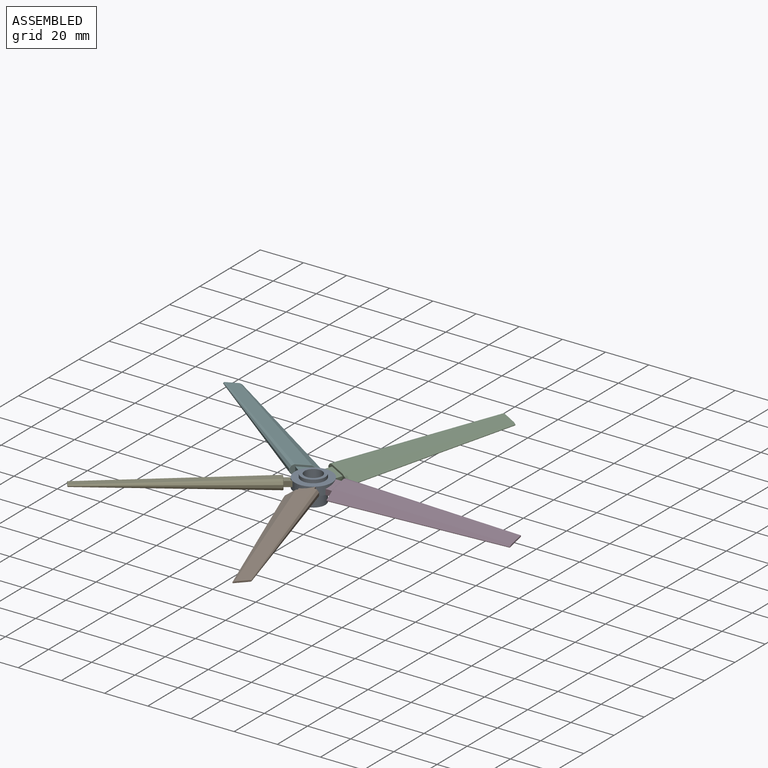
[diagram: assembled view]
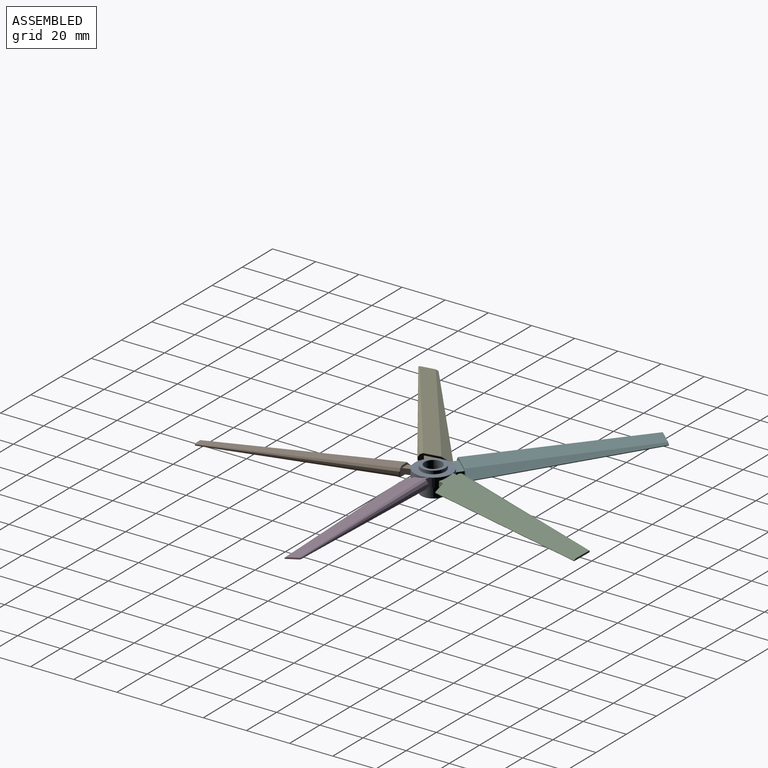
[diagram: assembled view, second angle]
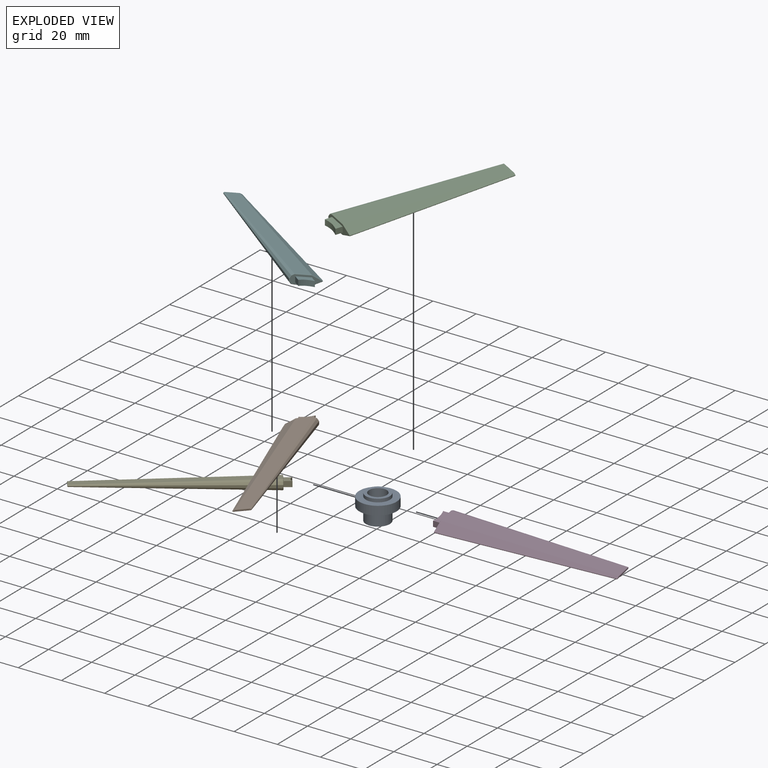
[diagram: exploded view]
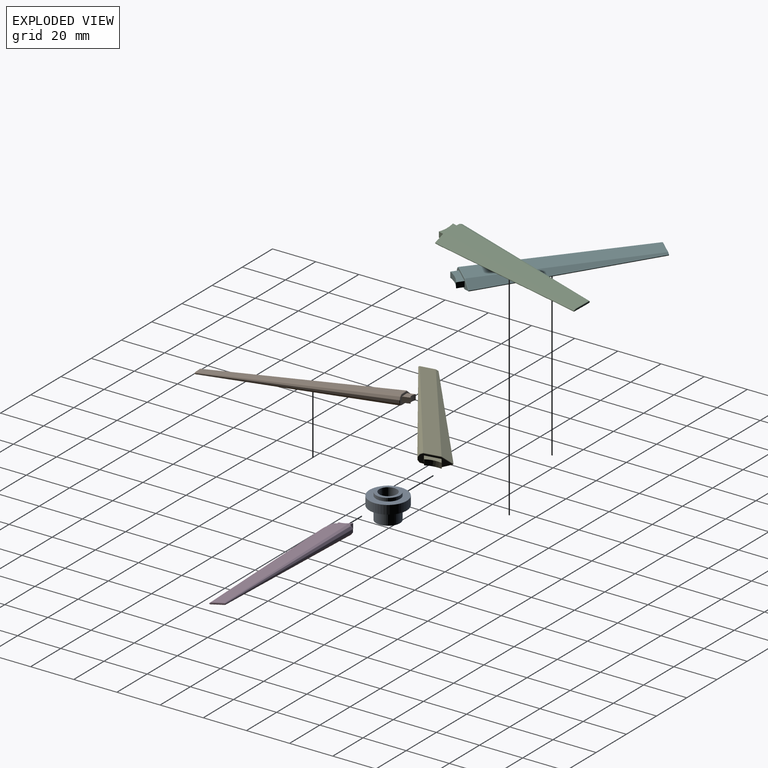
[diagram: exploded view, second angle]
ASSEMBLY  parts=6 mates=5
PART A: 8 faces, bbox 17.3x17.3x11.7 mm
  f0: cylinder r=5.56mm len=11.11mm, axis (0,0,-1), area 212.8mm2, adj f3,f6
  f1: cylinder r=5.56mm len=11.11mm, axis (0,0,-1), area 53.2mm2, adj f2,f7
  f2: plane 11.11x11.11mm, normal (0,0,1), area 45.1mm2, adj f1,f4
  f3: plane 11.11x11.11mm, normal (0,0,-1), area 45.1mm2, adj f0,f4
  f4: cylinder r=4.06mm len=11.68mm, axis (0,0,1), area 298.3mm2, adj f2,f3
  f5: cylinder r=8.64mm len=17.27mm, axis (0,0,1), area 220.5mm2, adj f6,f7
  f6: plane 17.27x17.27mm, normal (0,0,-1), area 137.3mm2, adj f0,f5
  f7: plane 17.27x17.27mm, normal (0,0,1), area 137.3mm2, adj f1,f5
PART B: 57 faces, bbox 36.5x83.4x6.3 mm
  f0: cylinder r=8.64mm len=6.36mm, axis (0,0,1), area 17.4mm2, adj f1,f2,f3,f4
  f1: plane 7.45x5.38mm, normal (-0.21,-0.07,0.97), area 20.7mm2, adj f0,f2,f4,f16
  f2: plane 3.3x2.54mm, normal (-0.95,-0.31,0), area 8.8mm2, adj f0,f1,f3,f16
  f3: plane 7.45x5.38mm, normal (0.21,0.07,-0.97), area 20.7mm2, adj f0,f2,f4,f16
  f4: plane 3.3x2.54mm, normal (0.95,0.31,0), area 8.8mm2, adj f0,f1,f3,f16
  f5: plane 78.08x25.36mm, normal (0.3,0.07,-0.95), area 81.9mm2, adj f19,f25,f28,f29
  f6: plane 78.11x24.21mm, normal (0.78,0.23,-0.59), area 55.6mm2, adj f18,f19,f21,f22
  f7: plane 78.09x23.5mm, normal (0.96,0.29,0), area 55.6mm2, adj f22,f23,f30,f31
  f8: plane 78.11x24.21mm, normal (0.78,0.23,0.59), area 55.6mm2, adj f31,f32,f37,f38
  f9: plane 77.94x25.3mm, normal (0.3,0.07,0.95), area 60.2mm2, adj f38,f39,f45,f46
  f10: plane 79.44x31.65mm, normal (-0.2,-0.09,0.97), area 540.6mm2, adj f46,f47,f51,f52
  f11: plane 77.59x29.99mm, normal (-0.53,-0.2,0.82), area 262.3mm2, adj f12,f41,f48,f52,f54
  f12: cone r=0.31mm half-angle=1.3deg, axis (-0.31,0.95,0), area 1.5mm2, adj f11,f13,f41,f55
  f13: plane 77.58x29.26mm, normal (-0.22,-0.1,-0.97), area 188.6mm2, adj f12,f14,f40,f41,f56
  f14: plane 79.73x31.38mm, normal (0.22,0.05,-0.97), area 564.5mm2, adj f13,f16,f25,f29,f36,f56
  f15: plane 6.84x2.22mm, normal (0.31,-0.95,0), area 3mm2, adj f18,f23,f28,f32,f36,f39,f40,f47
  f16: plane 12.51x5.82mm, normal (-0.31,0.95,0), area 27.8mm2, adj f1,f2,f3,f4,f14,f21,f25,f30
  f17: sphere r=0.25mm, area 0mm2, adj f18,f22,f23
  f18: cylinder r=0.25mm len=0.32mm, axis (-0.56,-0.18,-0.81), area 0mm2, adj f6,f15,f17,f24
  f19: cylinder r=0.25mm len=77.92mm, axis (-0.3,0.95,-0.02), area 13mm2, adj f5,f6,f20,f24
  f20: sphere r=0.25mm, area 0mm2, adj f19,f21,f25
  f21: cylinder r=0.25mm len=1.17mm, axis (0.56,0.18,0.81), area 0.5mm2, adj f6,f16,f20,f26
  f22: cylinder r=0.25mm len=78.11mm, axis (-0.29,0.96,-0.01), area 13mm2, adj f6,f7,f17,f26
  f23: cylinder r=0.25mm len=0.31mm, axis (0,0,-1), area 0mm2, adj f7,f15,f17,f27
  f24: sphere r=0.25mm, area 0mm2, adj f18,f19,f28
  f25: cylinder r=0.25mm len=3.97mm, axis (0.9,0.29,0.31), area 1mm2, adj f5,f14,f16,f20,f29
  f26: sphere r=0.25mm, area 0mm2, adj f21,f22,f30
  f27: sphere r=0.25mm, area 0mm2, adj f23,f31,f32
  f28: cylinder r=0.25mm len=0.64mm, axis (-0.9,-0.29,-0.31), area 0.3mm2, adj f5,f15,f24,f33
  f29: cylinder r=0.25mm len=77.72mm, axis (-0.3,0.95,-0.02), area 1.9mm2, adj f5,f14,f25,f33
  f30: cylinder r=0.25mm len=1.26mm, axis (0,0,1), area 0.5mm2, adj f7,f16,f26,f34
  f31: cylinder r=0.25mm len=78.11mm, axis (-0.29,0.96,0.01), area 13mm2, adj f7,f8,f27,f34
  f32: cylinder r=0.25mm len=0.32mm, axis (0.56,0.18,-0.81), area 0mm2, adj f8,f15,f27,f35
  f33: sphere r=0.25mm, area 0mm2, adj f28,f29,f36
  f34: sphere r=0.25mm, area 0mm2, adj f30,f31,f37
  f35: sphere r=0.25mm, area 0mm2, adj f32,f38,f39
  f36: cylinder r=0.25mm len=6.21mm, axis (0.93,0.3,0.22), area 2.6mm2, adj f14,f15,f33,f40
  f37: cylinder r=0.25mm len=1.17mm, axis (-0.56,-0.18,0.81), area 0.5mm2, adj f8,f16,f34,f42
  f38: cylinder r=0.25mm len=77.92mm, axis (-0.3,0.95,0.02), area 13mm2, adj f8,f9,f35,f42
  f39: cylinder r=0.25mm len=0.32mm, axis (0.9,0.29,-0.31), area 0.1mm2, adj f9,f15,f35,f43
  f40: cylinder r=0.25mm len=0.28mm, axis (0.92,0.3,-0.24), area 0mm2, adj f13,f15,f36,f44
  f41: cylinder r=0.25mm len=74.06mm, axis (-0.36,0.93,-0.01), area 46.2mm2, adj f11,f12,f13,f44
  f42: sphere r=0.25mm, area 0mm2, adj f37,f38,f45
  f43: sphere r=0.25mm, area 0mm2, adj f39,f46,f47
  f44: sphere r=0.25mm, area 0.1mm2, adj f40,f41,f48
  f45: cylinder r=0.25mm len=1.31mm, axis (-0.9,-0.29,0.31), area 0.5mm2, adj f9,f16,f42,f49
  f46: cylinder r=0.25mm len=77.61mm, axis (-0.31,0.95,0.02), area 11.1mm2, adj f9,f10,f43,f49
  f47: cylinder r=0.25mm len=5.89mm, axis (-0.93,-0.3,-0.22), area 2.4mm2, adj f10,f15,f43,f50
  f48: cylinder r=0.25mm len=1.06mm, axis (-0.78,-0.25,-0.57), area 0.4mm2, adj f11,f15,f44,f50
  f49: sphere r=0.25mm, area 0mm2, adj f45,f46,f51
  f50: sphere r=0.25mm, area 0mm2, adj f47,f48,f52
  f51: cylinder r=0.25mm len=6.58mm, axis (0.93,0.3,0.22), area 2.8mm2, adj f10,f16,f49,f53
  f52: cylinder r=0.25mm len=77.35mm, axis (-0.32,0.95,0.02), area 7.9mm2, adj f10,f11,f50,f53
  f53: sphere r=0.25mm, area 0mm2, adj f51,f52,f54
  f54: cylinder r=0.25mm len=4.18mm, axis (0.78,0.25,0.57), area 2.1mm2, adj f11,f16,f53,f55
  f55: torus R=0.05mm, axis (0.31,-0.95,0), area 0.2mm2, adj f12,f16,f54,f56
  f56: cylinder r=0.25mm len=4.56mm, axis (-0.92,-0.3,0.24), area 1.8mm2, adj f13,f14,f16,f55
PART C: 57 faces, bbox 34.3x83.6x6.3 mm
  f0: cylinder r=8.64mm len=6.36mm, axis (0,0,1), area 17.4mm2, adj f1,f2,f3,f4
  f1: plane 7.45x5.38mm, normal (0.21,-0.07,0.97), area 20.7mm2, adj f0,f2,f4,f16
  f2: plane 3.3x2.54mm, normal (0.95,-0.31,0), area 8.8mm2, adj f0,f1,f3,f16
  f3: plane 7.45x5.38mm, normal (-0.21,0.07,-0.97), area 20.7mm2, adj f0,f2,f4,f16
  f4: plane 3.3x2.54mm, normal (-0.95,0.31,0), area 8.8mm2, adj f0,f1,f3,f16
  f5: plane 77.6x26.85mm, normal (-0.29,0.12,-0.95), area 81.9mm2, adj f19,f25,f28,f29
  f6: plane 77.22x26.95mm, normal (-0.76,0.27,-0.59), area 55.6mm2, adj f18,f19,f21,f22
  f7: plane 76.99x26.89mm, normal (-0.94,0.33,0), area 55.6mm2, adj f22,f23,f30,f31
  f8: plane 77.22x26.95mm, normal (-0.76,0.27,0.59), area 55.6mm2, adj f31,f32,f37,f38
  f9: plane 77.58x26.43mm, normal (-0.29,0.12,0.95), area 60.2mm2, adj f38,f39,f45,f46
  f10: plane 79.64x31.03mm, normal (0.22,-0.05,0.97), area 540.6mm2, adj f46,f47,f51,f52
  f11: plane 79.1x25.34mm, normal (0.55,-0.15,0.82), area 262.3mm2, adj f12,f41,f48,f52,f54
  f12: cone r=0.31mm half-angle=1.3deg, axis (-0.31,-0.95,0), area 1.5mm2, adj f11,f13,f41,f55
  f13: plane 78.86x25.3mm, normal (0.24,-0.05,-0.97), area 188.6mm2, adj f12,f14,f40,f41,f56
  f14: plane 79.68x31.82mm, normal (-0.2,0.09,-0.97), area 564.5mm2, adj f13,f16,f25,f29,f36,f56
  f15: plane 6.84x2.22mm, normal (0.31,0.95,0), area 3mm2, adj f18,f23,f28,f32,f36,f39,f40,f47
  f16: plane 12.51x5.82mm, normal (-0.31,-0.95,0), area 27.8mm2, adj f1,f2,f3,f4,f14,f21,f25,f30
  f17: sphere r=0.25mm, area 0mm2, adj f18,f22,f23
  f18: cylinder r=0.25mm len=0.33mm, axis (0.56,-0.18,-0.81), area 0mm2, adj f6,f15,f17,f24
  f19: cylinder r=0.25mm len=77.24mm, axis (-0.32,-0.95,-0.02), area 13mm2, adj f5,f6,f20,f24
  f20: sphere r=0.25mm, area 0mm2, adj f19,f21,f25
  f21: cylinder r=0.25mm len=1.17mm, axis (-0.56,0.18,0.81), area 0.5mm2, adj f6,f16,f20,f26
  f22: cylinder r=0.25mm len=77.01mm, axis (-0.33,-0.94,-0.01), area 13mm2, adj f6,f7,f17,f26
  f23: cylinder r=0.25mm len=0.32mm, axis (0,0,-1), area 0mm2, adj f7,f15,f17,f27
  f24: sphere r=0.25mm, area 0mm2, adj f18,f19,f28
  f25: cylinder r=0.25mm len=3.85mm, axis (-0.9,0.29,0.31), area 1mm2, adj f5,f14,f16,f20,f29
  f26: sphere r=0.25mm, area 0mm2, adj f21,f22,f30
  f27: sphere r=0.25mm, area 0mm2, adj f23,f31,f32
  f28: cylinder r=0.25mm len=0.76mm, axis (0.9,-0.29,-0.31), area 0.3mm2, adj f5,f15,f24,f33
  f29: cylinder r=0.25mm len=77.43mm, axis (-0.31,-0.95,-0.02), area 1.9mm2, adj f5,f14,f25,f33
  f30: cylinder r=0.25mm len=1.26mm, axis (0,0,1), area 0.5mm2, adj f7,f16,f26,f34
  f31: cylinder r=0.25mm len=77.01mm, axis (-0.33,-0.94,0.01), area 13mm2, adj f7,f8,f27,f34
  f32: cylinder r=0.25mm len=0.33mm, axis (-0.56,0.18,-0.81), area 0mm2, adj f8,f15,f27,f35
  f33: sphere r=0.25mm, area 0mm2, adj f28,f29,f36
  f34: sphere r=0.25mm, area 0mm2, adj f30,f31,f37
  f35: sphere r=0.25mm, area 0mm2, adj f32,f38,f39
  f36: cylinder r=0.25mm len=6.3mm, axis (-0.93,0.3,0.22), area 2.6mm2, adj f14,f15,f33,f40
  f37: cylinder r=0.25mm len=1.17mm, axis (0.56,-0.18,0.81), area 0.5mm2, adj f8,f16,f34,f42
  f38: cylinder r=0.25mm len=77.24mm, axis (-0.32,-0.95,0.02), area 13mm2, adj f8,f9,f35,f42
  f39: cylinder r=0.25mm len=0.34mm, axis (-0.9,0.29,-0.31), area 0.1mm2, adj f9,f15,f35,f43
  f40: cylinder r=0.25mm len=0.29mm, axis (-0.92,0.3,-0.24), area 0mm2, adj f13,f15,f36,f44
  f41: cylinder r=0.25mm len=76.6mm, axis (-0.26,-0.97,-0.01), area 46.2mm2, adj f11,f12,f13,f44
  f42: sphere r=0.25mm, area 0mm2, adj f37,f38,f45
  f43: sphere r=0.25mm, area 0mm2, adj f39,f46,f47
  f44: sphere r=0.25mm, area 0.1mm2, adj f40,f41,f48
  f45: cylinder r=0.25mm len=1.19mm, axis (0.9,-0.29,0.31), area 0.5mm2, adj f9,f16,f42,f49
  f46: cylinder r=0.25mm len=77.56mm, axis (-0.31,-0.95,0.02), area 11.1mm2, adj f9,f10,f43,f49
  f47: cylinder r=0.25mm len=5.8mm, axis (0.93,-0.3,-0.22), area 2.4mm2, adj f10,f15,f43,f50
  f48: cylinder r=0.25mm len=0.92mm, axis (0.78,-0.25,-0.57), area 0.4mm2, adj f11,f15,f44,f50
  f49: sphere r=0.25mm, area 0mm2, adj f45,f46,f51
  f50: sphere r=0.25mm, area 0mm2, adj f47,f48,f52
  f51: cylinder r=0.25mm len=6.67mm, axis (-0.93,0.3,0.22), area 2.8mm2, adj f10,f16,f49,f53
  f52: cylinder r=0.25mm len=77.8mm, axis (-0.3,-0.95,0.02), area 7.9mm2, adj f10,f11,f50,f53
  f53: sphere r=0.25mm, area 0mm2, adj f51,f52,f54
  f54: cylinder r=0.25mm len=4.32mm, axis (-0.78,0.25,0.57), area 2.1mm2, adj f11,f16,f53,f55
  f55: torus R=0.05mm, axis (0.31,0.95,0), area 0.2mm2, adj f12,f16,f54,f56
  f56: cylinder r=0.25mm len=4.66mm, axis (0.92,-0.3,0.24), area 1.8mm2, adj f13,f14,f16,f55
PART D: 57 faces, bbox 85.5x13.7x6.3 mm
  f0: cylinder r=8.64mm len=6.69mm, axis (0,0,1), area 17.4mm2, adj f1,f2,f3,f4
  f1: plane 6.7x3.48mm, normal (0,-0.22,0.97), area 20.7mm2, adj f0,f2,f4,f16
  f2: plane 3.47x2.54mm, normal (0,-1,0), area 8.8mm2, adj f0,f1,f3,f16
  f3: plane 6.7x3.48mm, normal (0,0.22,-0.97), area 20.7mm2, adj f0,f2,f4,f16
  f4: plane 3.47x2.54mm, normal (0,1,0), area 8.8mm2, adj f0,f1,f3,f16
  f5: plane 81.53x1.93mm, normal (0.02,0.31,-0.95), area 81.9mm2, adj f19,f25,f28,f29
  f6: plane 81.53x1.84mm, normal (0.02,0.81,-0.59), area 55.6mm2, adj f18,f19,f21,f22
  f7: plane 81.53x1.78mm, normal (0.02,1,0), area 55.6mm2, adj f22,f23,f30,f31
  f8: plane 81.53x1.84mm, normal (0.02,0.81,0.59), area 55.6mm2, adj f31,f32,f37,f38
  f9: plane 81.53x1.91mm, normal (0.02,0.31,0.95), area 60.2mm2, adj f38,f39,f45,f46
  f10: plane 81.53x6.87mm, normal (0.02,-0.22,0.97), area 540.6mm2, adj f46,f47,f51,f52
  f11: plane 81.53x5.04mm, normal (0.02,-0.57,0.82), area 262.3mm2, adj f12,f41,f48,f52,f54
  f12: cone r=0.31mm half-angle=1.3deg, axis (-1,0,0), area 1.5mm2, adj f11,f13,f41,f55
  f13: plane 81.53x4.27mm, normal (0.02,-0.24,-0.97), area 188.6mm2, adj f12,f14,f40,f41,f56
  f14: plane 81.79x6.97mm, normal (0.02,0.22,-0.97), area 564.5mm2, adj f13,f16,f25,f29,f36,f56
  f15: plane 7.2x2.01mm, normal (1,0,0), area 3mm2, adj f18,f23,f28,f32,f36,f39,f40,f47
  f16: plane 13.16x5.82mm, normal (-1,0,0), area 27.8mm2, adj f1,f2,f3,f4,f14,f21,f25,f30
  f17: sphere r=0.25mm, area 0mm2, adj f18,f22,f23
  f18: cylinder r=0.25mm len=0.27mm, axis (0,-0.59,-0.81), area 0mm2, adj f6,f15,f17,f24
  f19: cylinder r=0.25mm len=81.53mm, axis (-1,0.01,-0.02), area 13mm2, adj f5,f6,f20,f24
  f20: sphere r=0.25mm, area 0mm2, adj f19,f21,f25
  f21: cylinder r=0.25mm len=1.17mm, axis (0,0.59,0.81), area 0.5mm2, adj f6,f16,f20,f26
  f22: cylinder r=0.25mm len=81.53mm, axis (-1,0.02,-0.01), area 13mm2, adj f6,f7,f17,f26
  f23: cylinder r=0.25mm len=0.25mm, axis (0,0,-1), area 0mm2, adj f7,f15,f17,f27
  f24: sphere r=0.25mm, area 0mm2, adj f18,f19,f28
  f25: cylinder r=0.25mm len=4.09mm, axis (0,0.95,0.31), area 1mm2, adj f5,f14,f16,f20,f29
  f26: sphere r=0.25mm, area 0mm2, adj f21,f22,f30
  f27: sphere r=0.25mm, area 0mm2, adj f23,f31,f32
  f28: cylinder r=0.25mm len=0.72mm, axis (0,-0.95,-0.31), area 0.3mm2, adj f5,f15,f24,f33
  f29: cylinder r=0.25mm len=81.56mm, axis (-1,0.01,-0.02), area 1.9mm2, adj f5,f14,f25,f33
  f30: cylinder r=0.25mm len=1.26mm, axis (0,0,1), area 0.5mm2, adj f7,f16,f26,f34
  f31: cylinder r=0.25mm len=81.53mm, axis (-1,0.02,0.01), area 13mm2, adj f7,f8,f27,f34
  f32: cylinder r=0.25mm len=0.27mm, axis (0,0.59,-0.81), area 0mm2, adj f8,f15,f27,f35
  f33: sphere r=0.25mm, area 0mm2, adj f28,f29,f36
  f34: sphere r=0.25mm, area 0mm2, adj f30,f31,f37
  f35: sphere r=0.25mm, area 0mm2, adj f32,f38,f39
  f36: cylinder r=0.25mm len=6.54mm, axis (0,0.97,0.22), area 2.6mm2, adj f14,f15,f33,f40
  f37: cylinder r=0.25mm len=1.17mm, axis (0,-0.59,0.81), area 0.5mm2, adj f8,f16,f34,f42
  f38: cylinder r=0.25mm len=81.53mm, axis (-1,0.01,0.02), area 13mm2, adj f8,f9,f35,f42
  f39: cylinder r=0.25mm len=0.3mm, axis (0,0.95,-0.31), area 0.1mm2, adj f9,f15,f35,f43
  f40: cylinder r=0.25mm len=0.28mm, axis (0,0.97,-0.24), area 0mm2, adj f13,f15,f36,f44
  f41: cylinder r=0.25mm len=79.15mm, axis (-1,-0.05,-0.01), area 46.2mm2, adj f11,f12,f13,f44
  f42: sphere r=0.25mm, area 0mm2, adj f37,f38,f45
  f43: sphere r=0.25mm, area 0mm2, adj f39,f46,f47
  f44: sphere r=0.25mm, area 0.1mm2, adj f40,f41,f48
  f45: cylinder r=0.25mm len=1.29mm, axis (0,-0.95,0.31), area 0.5mm2, adj f9,f16,f42,f49
  f46: cylinder r=0.25mm len=81.53mm, axis (-1,0,0.02), area 11.1mm2, adj f9,f10,f43,f49
  f47: cylinder r=0.25mm len=6.11mm, axis (0,-0.97,-0.22), area 2.4mm2, adj f10,f15,f43,f50
  f48: cylinder r=0.25mm len=1.03mm, axis (0,-0.82,-0.57), area 0.4mm2, adj f11,f15,f44,f50
  f49: sphere r=0.25mm, area 0mm2, adj f45,f46,f51
  f50: sphere r=0.25mm, area 0mm2, adj f47,f48,f52
  f51: cylinder r=0.25mm len=6.93mm, axis (0,0.97,0.22), area 2.8mm2, adj f10,f16,f49,f53
  f52: cylinder r=0.25mm len=81.53mm, axis (-1,-0.01,0.02), area 7.9mm2, adj f10,f11,f50,f53
  f53: sphere r=0.25mm, area 0mm2, adj f51,f52,f54
  f54: cylinder r=0.25mm len=4.46mm, axis (0,0.82,0.57), area 2.1mm2, adj f11,f16,f53,f55
  f55: torus R=0.05mm, axis (1,0,0), area 0.2mm2, adj f12,f16,f54,f56
  f56: cylinder r=0.25mm len=4.82mm, axis (0,-0.97,0.24), area 1.8mm2, adj f13,f14,f16,f55
PART E: 57 faces, bbox 73.2x57.7x6.3 mm
  f0: cylinder r=8.64mm len=5.41mm, axis (0,0,1), area 17.4mm2, adj f1,f2,f3,f4
  f1: plane 7.46x6.75mm, normal (-0.13,0.18,0.97), area 20.7mm2, adj f0,f2,f4,f16
  f2: plane 2.81x2.54mm, normal (-0.59,0.81,0), area 8.8mm2, adj f0,f1,f3,f16
  f3: plane 7.46x6.75mm, normal (0.13,-0.18,-0.97), area 20.7mm2, adj f0,f2,f4,f16
  f4: plane 2.81x2.54mm, normal (0.59,-0.81,0), area 8.8mm2, adj f0,f1,f3,f16
  f5: plane 66.99x48.06mm, normal (0.16,-0.26,-0.95), area 81.9mm2, adj f19,f25,f28,f29
  f6: plane 67.04x47.08mm, normal (0.46,-0.67,-0.59), area 55.6mm2, adj f18,f19,f21,f22
  f7: plane 67.01x46.49mm, normal (0.57,-0.82,0), area 55.6mm2, adj f22,f23,f30,f31
  f8: plane 67.04x47.08mm, normal (0.46,-0.67,0.59), area 55.6mm2, adj f31,f32,f37,f38
  f9: plane 66.72x48.01mm, normal (0.16,-0.26,0.95), area 60.2mm2, adj f38,f39,f45,f46
  f10: plane 69.57x53.41mm, normal (-0.15,0.17,0.97), area 540.6mm2, adj f46,f47,f51,f52
  f11: plane 66.05x52.01mm, normal (-0.35,0.45,0.82), area 262.3mm2, adj f12,f41,f48,f52,f54
  f12: cone r=0.31mm half-angle=1.3deg, axis (0.81,0.59,0), area 1.5mm2, adj f11,f13,f41,f55
  f13: plane 66.03x51.38mm, normal (-0.16,0.18,-0.97), area 188.6mm2, adj f12,f14,f40,f41,f56
  f14: plane 70.07x53.21mm, normal (0.11,-0.19,-0.97), area 564.5mm2, adj f13,f16,f25,f29,f36,f56
  f15: plane 5.82x4.23mm, normal (-0.81,-0.59,0), area 3mm2, adj f18,f23,f28,f32,f36,f39,f40,f47
  f16: plane 10.65x7.73mm, normal (0.81,0.59,0), area 27.8mm2, adj f1,f2,f3,f4,f14,f21,f25,f30
  f17: sphere r=0.25mm, area 0mm2, adj f18,f22,f23
  f18: cylinder r=0.25mm len=0.36mm, axis (-0.35,0.48,-0.81), area 0mm2, adj f6,f15,f17,f24
  f19: cylinder r=0.25mm len=66.68mm, axis (0.82,0.58,-0.02), area 13mm2, adj f5,f6,f20,f24
  f20: sphere r=0.25mm, area 0mm2, adj f19,f21,f25
  f21: cylinder r=0.25mm len=1.17mm, axis (0.35,-0.48,0.81), area 0.5mm2, adj f6,f16,f20,f26
  f22: cylinder r=0.25mm len=67.04mm, axis (0.82,0.57,-0.01), area 13mm2, adj f6,f7,f17,f26
  f23: cylinder r=0.25mm len=0.35mm, axis (0,0,-1), area 0mm2, adj f7,f15,f17,f27
  f24: sphere r=0.25mm, area 0mm2, adj f18,f19,f28
  f25: cylinder r=0.25mm len=3.46mm, axis (0.56,-0.77,0.31), area 1mm2, adj f5,f14,f16,f20,f29
  f26: sphere r=0.25mm, area 0mm2, adj f21,f22,f30
  f27: sphere r=0.25mm, area 0mm2, adj f23,f31,f32
  f28: cylinder r=0.25mm len=0.62mm, axis (-0.56,0.77,-0.31), area 0.3mm2, adj f5,f15,f24,f33
  f29: cylinder r=0.25mm len=66.27mm, axis (0.81,0.58,-0.02), area 1.9mm2, adj f5,f14,f25,f33
  f30: cylinder r=0.25mm len=1.26mm, axis (0,0,1), area 0.5mm2, adj f7,f16,f26,f34
  f31: cylinder r=0.25mm len=67.04mm, axis (0.82,0.57,0.01), area 13mm2, adj f7,f8,f27,f34
  f32: cylinder r=0.25mm len=0.36mm, axis (0.35,-0.48,-0.81), area 0mm2, adj f8,f15,f27,f35
  f33: sphere r=0.25mm, area 0mm2, adj f28,f29,f36
  f34: sphere r=0.25mm, area 0mm2, adj f30,f31,f37
  f35: sphere r=0.25mm, area 0mm2, adj f32,f38,f39
  f36: cylinder r=0.25mm len=5.35mm, axis (0.57,-0.79,0.22), area 2.6mm2, adj f14,f15,f33,f40
  f37: cylinder r=0.25mm len=1.17mm, axis (-0.35,0.48,0.81), area 0.5mm2, adj f8,f16,f34,f42
  f38: cylinder r=0.25mm len=66.68mm, axis (0.82,0.58,0.02), area 13mm2, adj f8,f9,f35,f42
  f39: cylinder r=0.25mm len=0.36mm, axis (0.56,-0.77,-0.31), area 0.1mm2, adj f9,f15,f35,f43
  f40: cylinder r=0.25mm len=0.3mm, axis (0.57,-0.79,-0.24), area 0mm2, adj f13,f15,f36,f44
  f41: cylinder r=0.25mm len=61.72mm, axis (0.78,0.63,-0.01), area 46.2mm2, adj f11,f12,f13,f44
  f42: sphere r=0.25mm, area 0mm2, adj f37,f38,f45
  f43: sphere r=0.25mm, area 0mm2, adj f39,f46,f47
  f44: sphere r=0.25mm, area 0.1mm2, adj f40,f41,f48
  f45: cylinder r=0.25mm len=1.2mm, axis (-0.56,0.77,0.31), area 0.5mm2, adj f9,f16,f42,f49
  f46: cylinder r=0.25mm len=66.09mm, axis (0.81,0.59,0.02), area 11.1mm2, adj f9,f10,f43,f49
  f47: cylinder r=0.25mm len=5.09mm, axis (-0.57,0.79,-0.22), area 2.4mm2, adj f10,f15,f43,f50
  f48: cylinder r=0.25mm len=0.98mm, axis (-0.48,0.67,-0.57), area 0.4mm2, adj f11,f15,f44,f50
  f49: sphere r=0.25mm, area 0mm2, adj f45,f46,f51
  f50: sphere r=0.25mm, area 0mm2, adj f47,f48,f52
  f51: cylinder r=0.25mm len=5.67mm, axis (0.57,-0.79,0.22), area 2.8mm2, adj f10,f16,f49,f53
  f52: cylinder r=0.25mm len=65.59mm, axis (0.8,0.59,0.02), area 7.9mm2, adj f10,f11,f50,f53
  f53: sphere r=0.25mm, area 0mm2, adj f51,f52,f54
  f54: cylinder r=0.25mm len=3.57mm, axis (0.48,-0.67,0.57), area 2.1mm2, adj f11,f16,f53,f55
  f55: torus R=0.05mm, axis (-0.81,-0.59,0), area 0.2mm2, adj f12,f16,f54,f56
  f56: cylinder r=0.25mm len=3.96mm, axis (-0.57,0.79,0.24), area 1.8mm2, adj f13,f14,f16,f55
PART F: 57 faces, bbox 73.4x55.8x6.3 mm
  f0: cylinder r=8.64mm len=5.41mm, axis (0,0,1), area 17.4mm2, adj f1,f2,f3,f4
  f1: plane 7.46x6.75mm, normal (0.13,0.18,0.97), area 20.7mm2, adj f0,f2,f4,f16
  f2: plane 2.81x2.54mm, normal (0.59,0.81,0), area 8.8mm2, adj f0,f1,f3,f16
  f3: plane 7.46x6.75mm, normal (-0.13,-0.18,-0.97), area 20.7mm2, adj f0,f2,f4,f16
  f4: plane 2.81x2.54mm, normal (-0.59,-0.81,0), area 8.8mm2, adj f0,f1,f3,f16
  f5: plane 66.06x49.33mm, normal (-0.2,-0.24,-0.95), area 81.9mm2, adj f19,f25,f28,f29
  f6: plane 65.35x49.41mm, normal (-0.49,-0.64,-0.59), area 55.6mm2, adj f18,f19,f21,f22
  f7: plane 64.92x49.36mm, normal (-0.61,-0.8,0), area 55.6mm2, adj f22,f23,f30,f31
  f8: plane 65.35x49.41mm, normal (-0.49,-0.64,0.59), area 55.6mm2, adj f31,f32,f37,f38
  f9: plane 66.03x48.97mm, normal (-0.2,-0.24,0.95), area 60.2mm2, adj f38,f39,f45,f46
  f10: plane 69.95x52.89mm, normal (0.11,0.19,0.97), area 540.6mm2, adj f46,f47,f51,f52
  f11: plane 68.93x48.05mm, normal (0.32,0.47,0.82), area 262.3mm2, adj f12,f41,f48,f52,f54
  f12: cone r=0.31mm half-angle=1.3deg, axis (0.81,-0.59,0), area 1.5mm2, adj f11,f13,f41,f55
  f13: plane 68.47x48.01mm, normal (0.12,0.21,-0.97), area 188.6mm2, adj f12,f14,f40,f41,f56
  f14: plane 69.84x53.57mm, normal (-0.15,-0.17,-0.97), area 564.5mm2, adj f13,f16,f25,f29,f36,f56
  f15: plane 5.82x4.23mm, normal (-0.81,0.59,0), area 3mm2, adj f18,f23,f28,f32,f36,f39,f40,f47
  f16: plane 10.65x7.73mm, normal (0.81,-0.59,0), area 27.8mm2, adj f1,f2,f3,f4,f14,f21,f25,f30
  f17: sphere r=0.25mm, area 0mm2, adj f18,f22,f23
  f18: cylinder r=0.25mm len=0.36mm, axis (0.35,0.48,-0.81), area 0mm2, adj f6,f15,f17,f24
  f19: cylinder r=0.25mm len=65.39mm, axis (0.8,-0.6,-0.02), area 13mm2, adj f5,f6,f20,f24
  f20: sphere r=0.25mm, area 0mm2, adj f19,f21,f25
  f21: cylinder r=0.25mm len=1.17mm, axis (-0.35,-0.48,0.81), area 0.5mm2, adj f6,f16,f20,f26
  f22: cylinder r=0.25mm len=64.95mm, axis (0.8,-0.61,-0.01), area 13mm2, adj f6,f7,f17,f26
  f23: cylinder r=0.25mm len=0.35mm, axis (0,0,-1), area 0mm2, adj f7,f15,f17,f27
  f24: sphere r=0.25mm, area 0mm2, adj f18,f19,f28
  f25: cylinder r=0.25mm len=3.35mm, axis (-0.56,-0.77,0.31), area 1mm2, adj f5,f14,f16,f20,f29
  f26: sphere r=0.25mm, area 0mm2, adj f21,f22,f30
  f27: sphere r=0.25mm, area 0mm2, adj f23,f31,f32
  f28: cylinder r=0.25mm len=0.73mm, axis (0.56,0.77,-0.31), area 0.3mm2, adj f5,f15,f24,f33
  f29: cylinder r=0.25mm len=65.72mm, axis (0.81,-0.59,-0.02), area 1.9mm2, adj f5,f14,f25,f33
  f30: cylinder r=0.25mm len=1.26mm, axis (0,0,1), area 0.5mm2, adj f7,f16,f26,f34
  f31: cylinder r=0.25mm len=64.95mm, axis (0.8,-0.61,0.01), area 13mm2, adj f7,f8,f27,f34
  f32: cylinder r=0.25mm len=0.36mm, axis (-0.35,-0.48,-0.81), area 0mm2, adj f8,f15,f27,f35
  f33: sphere r=0.25mm, area 0mm2, adj f28,f29,f36
  f34: sphere r=0.25mm, area 0mm2, adj f30,f31,f37
  f35: sphere r=0.25mm, area 0mm2, adj f32,f38,f39
  f36: cylinder r=0.25mm len=5.44mm, axis (-0.57,-0.79,0.22), area 2.6mm2, adj f14,f15,f33,f40
  f37: cylinder r=0.25mm len=1.17mm, axis (0.35,0.48,0.81), area 0.5mm2, adj f8,f16,f34,f42
  f38: cylinder r=0.25mm len=65.39mm, axis (0.8,-0.6,0.02), area 13mm2, adj f8,f9,f35,f42
  f39: cylinder r=0.25mm len=0.37mm, axis (-0.56,-0.77,-0.31), area 0.1mm2, adj f9,f15,f35,f43
  f40: cylinder r=0.25mm len=0.31mm, axis (-0.57,-0.79,-0.24), area 0mm2, adj f13,f15,f36,f44
  f41: cylinder r=0.25mm len=66.56mm, axis (0.84,-0.54,-0.01), area 46.2mm2, adj f11,f12,f13,f44
  f42: sphere r=0.25mm, area 0mm2, adj f37,f38,f45
  f43: sphere r=0.25mm, area 0mm2, adj f39,f46,f47
  f44: sphere r=0.25mm, area 0.1mm2, adj f40,f41,f48
  f45: cylinder r=0.25mm len=1.08mm, axis (0.56,0.77,0.31), area 0.5mm2, adj f9,f16,f42,f49
  f46: cylinder r=0.25mm len=65.99mm, axis (0.81,-0.59,0.02), area 11.1mm2, adj f9,f10,f43,f49
  f47: cylinder r=0.25mm len=5.01mm, axis (0.57,0.79,-0.22), area 2.4mm2, adj f10,f15,f43,f50
  f48: cylinder r=0.25mm len=0.82mm, axis (0.48,0.67,-0.57), area 0.4mm2, adj f11,f15,f44,f50
  f49: sphere r=0.25mm, area 0mm2, adj f45,f46,f51
  f50: sphere r=0.25mm, area 0mm2, adj f47,f48,f52
  f51: cylinder r=0.25mm len=5.76mm, axis (-0.57,-0.79,0.22), area 2.8mm2, adj f10,f16,f49,f53
  f52: cylinder r=0.25mm len=66.44mm, axis (0.81,-0.58,0.02), area 7.9mm2, adj f10,f11,f50,f53
  f53: sphere r=0.25mm, area 0mm2, adj f51,f52,f54
  f54: cylinder r=0.25mm len=3.76mm, axis (-0.48,-0.67,0.57), area 2.1mm2, adj f11,f16,f53,f55
  f55: torus R=0.05mm, axis (-0.81,0.59,0), area 0.2mm2, adj f12,f16,f54,f56
  f56: cylinder r=0.25mm len=4.05mm, axis (0.57,0.79,0.24), area 1.8mm2, adj f13,f14,f16,f55
PLACE A t=(90.67,40.01,47.66)mm
PLACE B t=(90.67,40.01,47.66)mm
PLACE C t=(90.67,40.01,47.66)mm
PLACE D t=(90.67,40.01,47.66)mm
PLACE E t=(90.67,40.01,47.66)mm
PLACE F t=(90.67,40.01,47.66)mm
MATE fastened A.f0 <-> E.f0  axis (0,0,1) through (90.67,40.01,55.79)mm
MATE fastened A.f0 <-> B.f0  axis (0,0,1) through (90.67,40.01,55.79)mm
MATE fastened A.f0 <-> F.f0  axis (0,0,1) through (90.67,40.01,55.79)mm
MATE fastened A.f0 <-> D.f0  axis (0,0,1) through (90.67,40.01,55.79)mm
MATE fastened A.f0 <-> C.f0  axis (0,0,1) through (90.67,40.01,55.79)mm
